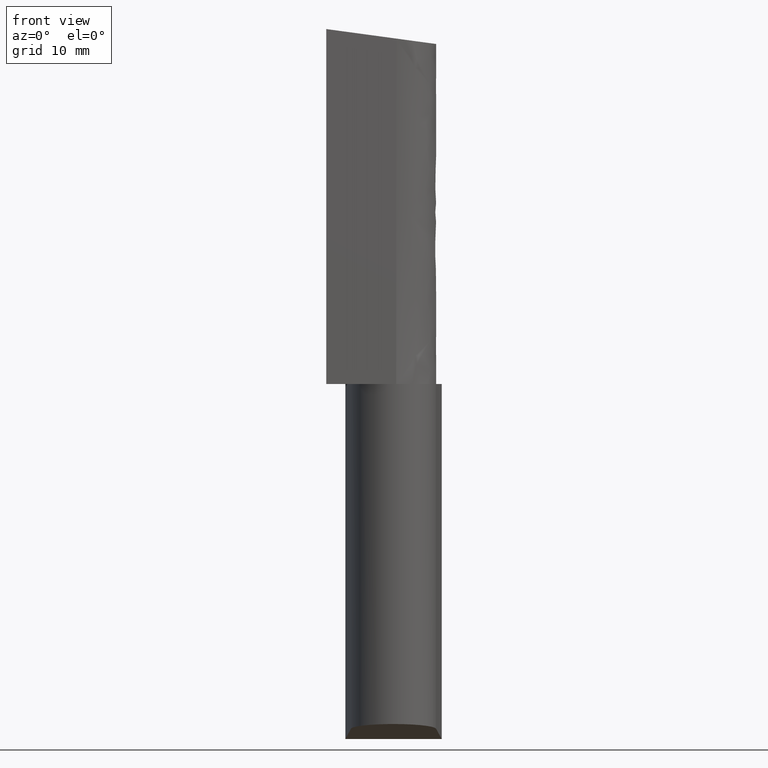
[diagram: clean part render]
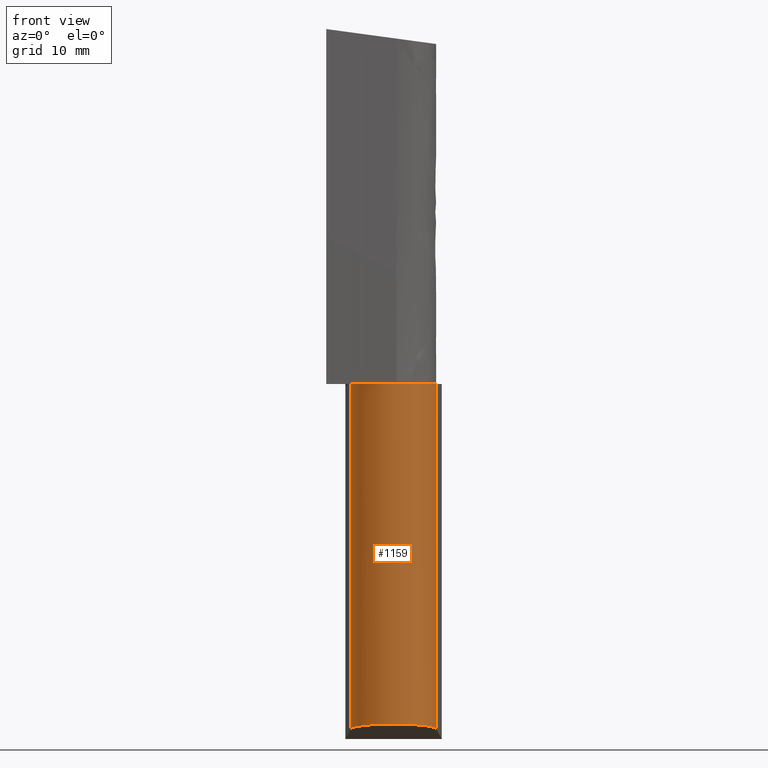
[diagram: same view with one face highlighted and labeled with its STEP entity id]
A machine part, front view. The second image highlights one B-rep face of the part: STEP entity #1159.
In plain terms, the highlighted face is a freeform B-spline surface patch.
Its self-contained STEP definition (entity closure, byte-faithful):
#1033=CARTESIAN_POINT('',(5.688290843953990,-0.365171686983634,1.379671189907754));
#1034=VERTEX_POINT('',#1033);
#1040=CARTESIAN_POINT('',(-5.688290843954590,-0.365171686983985,1.379671189907782));
#1041=VERTEX_POINT('',#1040);
#1042=CARTESIAN_POINT('',(5.688290843953990,-0.365171686983634,1.379671189907754));
#1043=CARTESIAN_POINT('',(5.345810403494418,-5.700000270738288,2.000000094995675));
#1044=CARTESIAN_POINT('',(-3.155577E-012,-5.700000270735608,2.000000094995364));
#1045=CARTESIAN_POINT('',(-5.345810403500728,-5.700000270732930,2.000000094995051));
#1046=CARTESIAN_POINT('',(-5.688290843954590,-0.365171686983985,1.379671189907782));
#1054=(BOUNDED_CURVE()B_SPLINE_CURVE(2,(#1042,#1043,#1044,#1045,#1046),.UNSPECIFIED.,.F.,.U.)B_SPLINE_CURVE_WITH_KNOTS((3,2,3),(0.0,0.500000000000000,1.0),.UNSPECIFIED.)CURVE()GEOMETRIC_REPRESENTATION_ITEM()RATIONAL_B_SPLINE_CURVE((1.0,0.729405650238358,1.0,0.729405650238358,1.0))REPRESENTATION_ITEM(''));
#1055=EDGE_CURVE('',#1034,#1041,#1054,.T.);
#1070=CARTESIAN_POINT('',(5.688290843953990,-0.365171686983622,47.500002256128901));
#1071=VERTEX_POINT('',#1070);
#1072=CARTESIAN_POINT('',(5.688290843953990,-0.365171686983622,47.500002256128901));
#1073=CARTESIAN_POINT('',(5.688290843953990,-0.365171686983634,1.379671189907754));
#1074=QUASI_UNIFORM_CURVE('',1,(#1072,#1073),.UNSPECIFIED.,.F.,.U.);
#1075=EDGE_CURVE('',#1071,#1034,#1074,.T.);
#1106=CARTESIAN_POINT('',(-5.688290843954590,-0.365171686983985,47.500002256128901));
#1107=VERTEX_POINT('',#1106);
#1108=CARTESIAN_POINT('',(-5.688290843954590,-0.365171686983985,47.500002256128901));
#1109=CARTESIAN_POINT('',(-5.688290843954590,-0.365171686983985,1.379671189907782));
#1110=QUASI_UNIFORM_CURVE('',1,(#1108,#1109),.UNSPECIFIED.,.F.,.U.);
#1111=EDGE_CURVE('',#1107,#1041,#1110,.T.);
#1121=CARTESIAN_POINT('',(-5.697103236416877,-0.181708007518140,48.653010532784442));
#1122=CARTESIAN_POINT('',(-5.697103236416877,-0.181708007518140,0.197837706335839));
#1123=CARTESIAN_POINT('',(-5.516974051509408,-5.829310313694828,48.653010532784435));
#1124=CARTESIAN_POINT('',(-5.516974051509408,-5.829310313694828,0.197837706335839));
#1125=CARTESIAN_POINT('',(0.131985115003070,-5.698471989560323,48.653010532784442));
#1126=CARTESIAN_POINT('',(0.131985115003070,-5.698471989560323,0.197837706335839));
#1127=CARTESIAN_POINT('',(5.780944281515547,-5.567633665425817,48.653010532784435));
#1128=CARTESIAN_POINT('',(5.780944281515547,-5.567633665425817,0.197837706335839));
#1129=CARTESIAN_POINT('',(5.699406781998948,0.082252171311086,48.653010532784442));
#1130=CARTESIAN_POINT('',(5.699406781998948,0.082252171311086,0.197837706335839));
#1138=(BOUNDED_SURFACE()B_SPLINE_SURFACE(1,2,((#1121,#1123,#1125,#1127,#1129),(#1122,#1124,#1126,#1128,#1130)),.UNSPECIFIED.,.F.,.F.,.U.)B_SPLINE_SURFACE_WITH_KNOTS((2,2),(3,2,3),(0.0,48.455172826448603),(0.0,9.385845949099551,18.771691898199101),.UNSPECIFIED.)GEOMETRIC_REPRESENTATION_ITEM()RATIONAL_B_SPLINE_SURFACE(((1.0,0.710185375623285,1.0,0.710185375623285,1.0),(1.0,0.710185375623285,1.0,0.710185375623285,1.0)))REPRESENTATION_ITEM('')SURFACE());
#1139=ORIENTED_EDGE('',*,*,#1111,.T.);
#1140=ORIENTED_EDGE('',*,*,#1055,.F.);
#1141=ORIENTED_EDGE('',*,*,#1075,.F.);
#1142=CARTESIAN_POINT('',(5.688290843953990,-0.365171686983622,47.500002256128901));
#1143=CARTESIAN_POINT('',(5.345810403494622,-5.700000270735615,47.500002256128894));
#1144=CARTESIAN_POINT('',(-2.984279E-013,-5.700000270735612,47.500002256128901));
#1145=CARTESIAN_POINT('',(-5.345810403494879,-5.700000270735615,47.500002256128894));
#1146=CARTESIAN_POINT('',(-5.688290843954590,-0.365171686983985,47.500002256128901));
#1154=(BOUNDED_CURVE()B_SPLINE_CURVE(2,(#1142,#1143,#1144,#1145,#1146),.UNSPECIFIED.,.F.,.U.)B_SPLINE_CURVE_WITH_KNOTS((3,2,3),(0.0,0.500000000000000,1.0),.UNSPECIFIED.)CURVE()GEOMETRIC_REPRESENTATION_ITEM()RATIONAL_B_SPLINE_CURVE((1.0,0.729405650238527,1.0,0.729405650238527,1.0))REPRESENTATION_ITEM(''));
#1155=EDGE_CURVE('',#1071,#1107,#1154,.T.);
#1156=ORIENTED_EDGE('',*,*,#1155,.T.);
#1157=EDGE_LOOP('',(#1139,#1140,#1141,#1156));
#1158=FACE_OUTER_BOUND('',#1157,.T.);
#1159=ADVANCED_FACE('',(#1158),#1138,.T.);